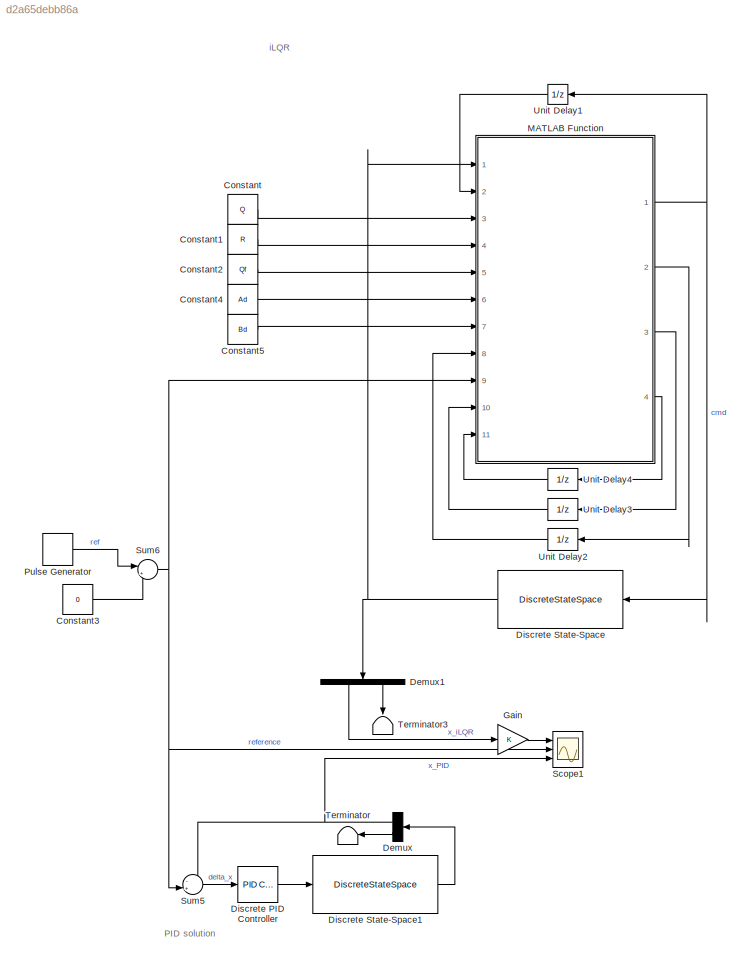
MODEL slx_d2a65debb86a
KIND model
CONFIG AbsTol = auto
CONFIG EnableMultiTasking = off
CONFIG FixedStep = 0.001
CONFIG MaxStep = auto
CONFIG MinStep = auto
CONFIG RelTol = 1e-3
CONFIG SampleTimeConstraint = Unconstrained
CONFIG SolverName = FixedStepDiscrete
CONFIG StartTime = 0.0
CONFIG StopTime = 100
BLOCK [Constant] Constant
  Value = Q
BLOCK [Constant] Constant1
  Value = R
BLOCK [Constant] Constant2
  Value = Qf
BLOCK [Constant] Constant3
  Value = 0
BLOCK [Constant] Constant4
  Value = Ad
BLOCK [Constant] Constant5
  Value = Bd
BLOCK [Demux] Demux
  Outputs = 2
  Ports = [1, 2]
BLOCK [Demux] Demux1
  NameLocation = right
  Outputs = 2
  Ports = [1, 2]
BLOCK [Reference] Discrete PID Controller  REF=pid_lib/PID Controller
  Ports = [1, 1]
  SourceBlock = pid_lib/PID Controller
  SourceProductBaseCode = SL
  SourceType = PID 1dof
BLOCK [DiscreteStateSpace] Discrete State-Space
  A = Ad
  B = Bd
  C = Cd
  D = Dd
  NameLocation = top
  SampleTime = -1
BLOCK [DiscreteStateSpace] Discrete State-Space1
  A = Ad
  B = Bd
  C = Cd
  D = Dd
  SampleTime = -1
BLOCK [Gain] Gain
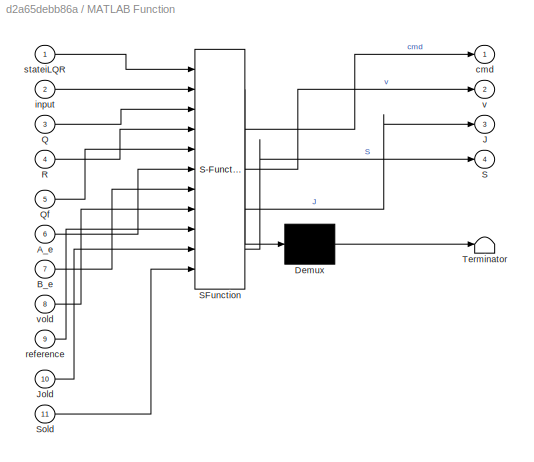
BLOCK [SubSystem] MATLAB Function
  ErrorFcn = Stateflow.Translate.translate
  PermitHierarchicalResolution = ExplicitOnly
  Ports = [11, 4]
  RequestExecContextInheritance = off
  SFBlockType = MATLAB Function
  TreatAsAtomicUnit = on
BLOCK [Demux] MATLAB Function/ Demux 
  Outputs = 1
  Ports = [1, 1]
BLOCK [S-Function] MATLAB Function/ SFunction 
  EnableBusSupport = on
  FunctionName = sf_sfun
  PortCounts = [11 5]
  Ports = [11, 5]
  SFcnIsStateOwnerBlock = off
  SFunctionDeploymentMode = off
  Tag = Stateflow S-Function 2
BLOCK [Terminator] MATLAB Function/ Terminator 
BLOCK [Inport] MATLAB Function/A_e
  Port = 6
BLOCK [Inport] MATLAB Function/B_e
  Port = 7
BLOCK [Outport] MATLAB Function/J
  Port = 3
BLOCK [Inport] MATLAB Function/Jold
  Port = 10
BLOCK [Inport] MATLAB Function/Q
  Port = 3
BLOCK [Inport] MATLAB Function/Qf
  Port = 5
BLOCK [Inport] MATLAB Function/R
  Port = 4
BLOCK [Outport] MATLAB Function/S
  Port = 4
BLOCK [Inport] MATLAB Function/Sold
  Port = 11
BLOCK [Outport] MATLAB Function/cmd
BLOCK [Inport] MATLAB Function/input
  Port = 2
BLOCK [Inport] MATLAB Function/reference
  Port = 9
BLOCK [Inport] MATLAB Function/stateiLQR
BLOCK [Outport] MATLAB Function/v
  Port = 2
BLOCK [Inport] MATLAB Function/vold
  Port = 8
BLOCK [DiscretePulseGenerator] Pulse Generator
  Period = 20
  Ports = [0, 1]
  PulseType = Time based
  PulseWidth = 50
BLOCK [Scope] Scope1
  Floating = off
  NumInputPorts = 3
  Ports = [3]
  ScopeSpecificationString = Simulink.scopes.TimeScopeBlockCfg('CurrentConfiguration', extmgr.ConfigurationSet(extmgr.Configuration('Core','General UI',true),extmgr.Configuration('Core','Source UI',true),extmgr.Configuration('Sources','WiredSimulink',true,'DataLoggingVariableName','ScopeData1'),extmgr.Configuration('Visuals','Time Domain',true,'SerializedDisplays',{struct('MinYLimReal','-3.23067','MaxYLimReal','3.0042','YLabe...<+1594ch>
BLOCK [Sum] Sum5
  Inputs = -+|
  Ports = [2, 1]
BLOCK [Sum] Sum6
  Inputs = |++
  Ports = [2, 1]
BLOCK [Terminator] Terminator
BLOCK [Terminator] Terminator3
  NameLocation = left
BLOCK [UnitDelay] Unit Delay1
  HasFrameUpgradeWarning = on
  SampleTime = -1
BLOCK [UnitDelay] Unit Delay2
  HasFrameUpgradeWarning = on
  InitialCondition = zeros(2,1)
  SampleTime = -1
BLOCK [UnitDelay] Unit Delay3
  HasFrameUpgradeWarning = on
  InitialCondition = 10000
  SampleTime = -1
BLOCK [UnitDelay] Unit Delay4
  HasFrameUpgradeWarning = on
  InitialCondition = Qf
  SampleTime = -1
ANNOTATION (root): PID solution
ANNOTATION (root): iLQR
LINE Constant1:1 -> MATLAB Function:4
LINE Constant2:1 -> MATLAB Function:5
LINE Constant3:1 -> Sum6:2
LINE Constant4:1 -> MATLAB Function:6
LINE Constant5:1 -> MATLAB Function:7
LINE Constant:1 -> MATLAB Function:3
LINE Demux1:1 -> Gain:1
LINE Demux1:2 -> Terminator3:1
NET Demux:1 -> Scope1:3, Sum5:1
LINE Demux:2 -> Terminator:1
LINE Discrete PID Controller:1 -> Discrete State-Space1:1
LINE Discrete State-Space1:1 -> Demux:1
NET Discrete State-Space:1 -> Demux1:1, MATLAB Function:1
LINE Gain:1 -> Scope1:1
NET MATLAB Function:1 -> Discrete State-Space:1, Unit Delay1:1
LINE MATLAB Function:2 -> Unit Delay2:1
LINE MATLAB Function:3 -> Unit Delay3:1
LINE MATLAB Function:4 -> Unit Delay4:1
LINE Pulse Generator:1 -> Sum6:1
LINE Sum5:1 -> Discrete PID Controller:1
NET Sum6:1 -> MATLAB Function:9, Scope1:2, Sum5:2
LINE Unit Delay1:1 -> MATLAB Function:2
LINE Unit Delay2:1 -> MATLAB Function:8
LINE Unit Delay3:1 -> MATLAB Function:10
LINE Unit Delay4:1 -> MATLAB Function:11
note: NET lines group one-source signal fan-out (src -> all destinations, sorted); 1:1 wires keep LINE
CHART MATLAB Function states=1 transitions=1
  STATE_LABEL 'eML_blk_kernel()'
  STATE_LABEL "SCRIPT:\nfunction [cmd, v, J, S]= iLQR3(stateiLQR, input, Q, R, Qf, A_e, B_e, vold, reference, Jold, Sold)\n\n% toll = 3*10^-5;\n\nA = A_e;\nB = B_e;\nstate = stateiLQR';\nJ = state*Qf*state'+state*Q*state'+input'*R*input;\n\n\n% if abs(Jold-J)/Jold > toll\nK  = (B'*Sold*B+R)\\B'*Sold*A;\nKv = (B'*Sold*B+R)\\B';\nKu = (B'*Sold*B+R)\\R;\nS  = A'*Sold*(A-B*K)+Q;\ndeltax = -ones(size(Q,2),1)*reference; % Changed the si...<+241ch>"
CHART  states=0 transitions=0
